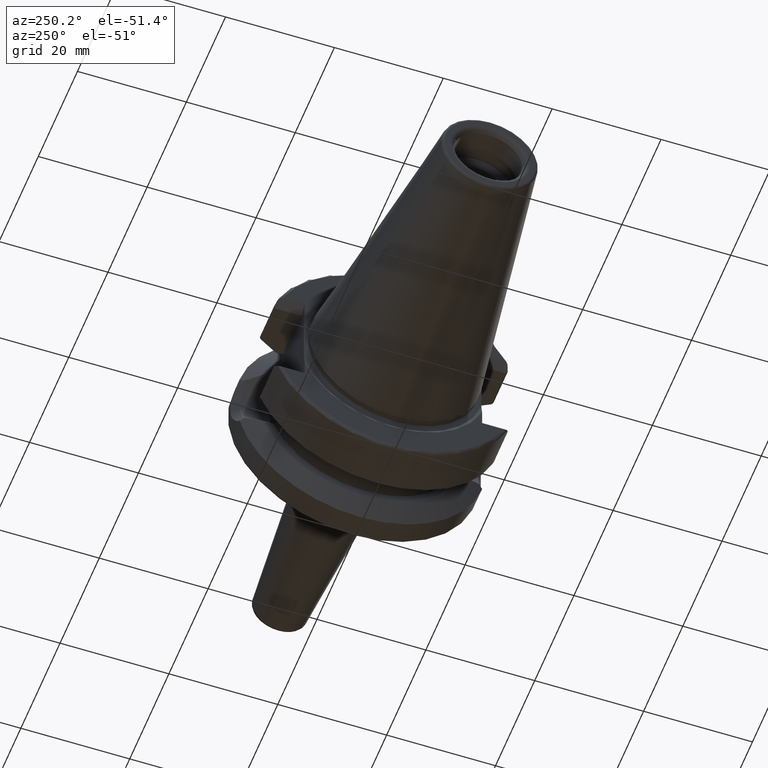
[diagram: clean part render]
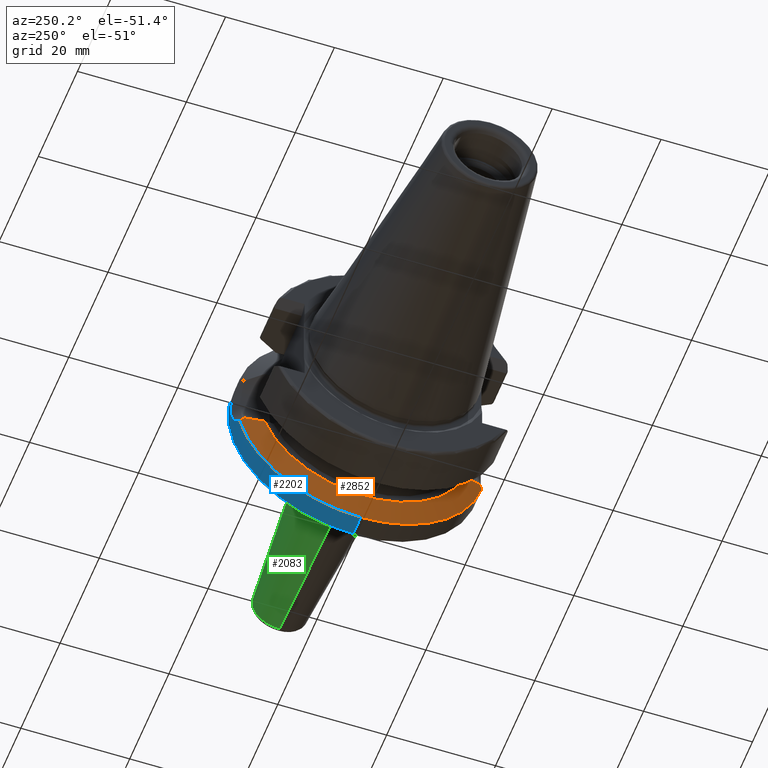
[diagram: same view with three faces highlighted in distinct colors, each labeled with its STEP entity id]
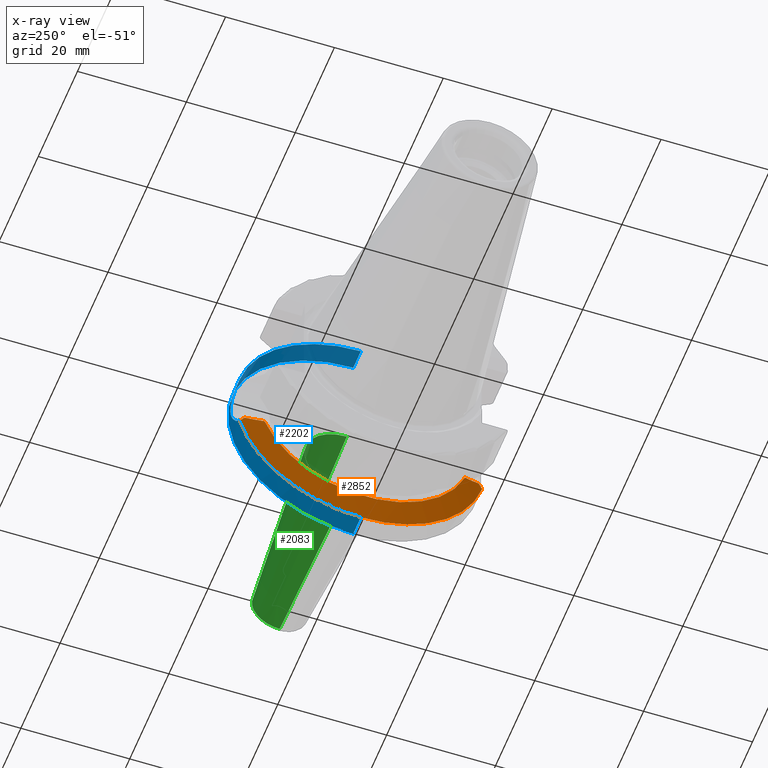
[diagram: x-ray of the same camera — body ghosted, the three highlighted faces saturated]
A machine part, auxiliary view with three faces highlighted in distinct colors.
The next image is the same camera in x-ray (body ghosted, the three faces saturated) — at least one of them is partly hidden behind the body in this view.
Their STEP definitions:

[orange] entity #2852 — the highlighted conical surface has half-angle 60 deg.
#507=CARTESIAN_POINT('',(1.762994105E1,2.228128551530E1,-5.704762552948E0));
#509=CARTESIAN_POINT('',(1.762994105E1,0.E0,0.E0));
#510=DIRECTION('',(1.E0,0.E0,0.E0));
#511=DIRECTION('',(0.E0,0.E0,-1.E0));
#512=AXIS2_PLACEMENT_3D('',#509,#510,#511);
#1066=CARTESIAN_POINT('',(1.762994105E1,-2.228128551530E1,-5.704762552948E0));
#1067=CARTESIAN_POINT('',(1.754699849289E1,-2.215727235610E1,
-5.609925297833E0));
#1068=CARTESIAN_POINT('',(1.738286337014E1,-2.191155304542E1,
-5.421496881998E0));
#1069=CARTESIAN_POINT('',(1.722224917371E1,-2.167047465394E1,
-5.235499218720E0));
#1070=CARTESIAN_POINT('',(1.714282833087E1,-2.155110382615E1,
-5.143090244631E0));
#1072=CARTESIAN_POINT('',(1.714282833087E1,2.155110382615E1,-5.143090244631E0));
#1073=CARTESIAN_POINT('',(1.722224917380E1,2.167047465408E1,-5.235499218823E0));
#1074=CARTESIAN_POINT('',(1.738286337032E1,2.191155304569E1,-5.421496882204E0));
#1075=CARTESIAN_POINT('',(1.754699849298E1,2.215727235624E1,-5.609925297935E0));
#1076=CARTESIAN_POINT('',(1.762994105E1,2.228128551530E1,-5.704762552948E0));
#1078=CARTESIAN_POINT('',(1.56300584E1,1.840542620957E1,-6.549775062748E0));
#1079=CARTESIAN_POINT('',(1.581913287648E1,1.880110795072E1,-6.414674302280E0));
#1080=CARTESIAN_POINT('',(1.618381384635E1,1.956209727519E1,-6.129361345053E0));
#1081=CARTESIAN_POINT('',(1.668859300772E1,2.061090659692E1,-5.659406960010E0));
#1082=CARTESIAN_POINT('',(1.699639923344E1,2.124828182100E1,-5.319406470843E0));
#1083=CARTESIAN_POINT('',(1.714282833087E1,2.155110382615E1,-5.143090244631E0));
#1085=CARTESIAN_POINT('',(1.56300584E1,0.E0,0.E0));
#1086=DIRECTION('',(-1.E0,0.E0,0.E0));
#1087=DIRECTION('',(0.E0,9.421237945915E-1,-3.352652019886E-1));
#1088=AXIS2_PLACEMENT_3D('',#1085,#1086,#1087);
#1090=CARTESIAN_POINT('',(1.714282833087E1,-2.155110382615E1,
-5.143090244631E0));
#1091=CARTESIAN_POINT('',(1.699635862047E1,-2.124819783153E1,
-5.319455373186E0));
#1092=CARTESIAN_POINT('',(1.668849650638E1,-2.061070614702E1,
-5.659497792001E0));
#1093=CARTESIAN_POINT('',(1.618392889942E1,-1.956233649303E1,
-6.129257646051E0));
#1094=CARTESIAN_POINT('',(1.581918420463E1,-1.880121536666E1,
-6.414637626400E0));
#1095=CARTESIAN_POINT('',(1.56300584E1,-1.840542620957E1,-6.549775062748E0));
#1128=CARTESIAN_POINT('',(1.762994105E1,-2.228128551530E1,-5.704762552948E0));
#1151=CARTESIAN_POINT('',(1.762994105E1,0.E0,0.E0));
#1152=DIRECTION('',(1.E0,0.E0,0.E0));
#1153=DIRECTION('',(0.E0,-9.687515441436E-1,-2.480331544760E-1));
#1154=AXIS2_PLACEMENT_3D('',#1151,#1152,#1153);
#1202=CARTESIAN_POINT('',(1.762994105E1,0.E0,-2.3E1));
#1203=VERTEX_POINT('',#1202);
#1288=CARTESIAN_POINT('',(1.56300584E1,1.840542620957E1,-6.549775062748E0));
#1289=VERTEX_POINT('',#1288);
#1309=VERTEX_POINT('',#507);
#1315=VERTEX_POINT('',#1072);
#1342=CARTESIAN_POINT('',(1.56300584E1,-1.840542620957E1,-6.549775062748E0));
#1343=VERTEX_POINT('',#1342);
#1364=VERTEX_POINT('',#1128);
#1376=VERTEX_POINT('',#1070);
#2835=CARTESIAN_POINT('',(1.662999972500E1,0.E0,0.E0));
#2836=DIRECTION('',(1.E0,0.E0,0.E0));
#2837=DIRECTION('',(0.E0,0.E0,1.E0));
#2838=AXIS2_PLACEMENT_3D('',#2835,#2836,#2837);
#2839=CONICAL_SURFACE('',#2838,2.126805082051E1,6.E1);
#2841=ORIENTED_EDGE('',*,*,#2840,.F.);
#2843=ORIENTED_EDGE('',*,*,#2842,.T.);
#2844=ORIENTED_EDGE('',*,*,#2191,.T.);
#2845=ORIENTED_EDGE('',*,*,#2830,.F.);
#2846=ORIENTED_EDGE('',*,*,#2803,.F.);
#2848=ORIENTED_EDGE('',*,*,#2847,.T.);
#2849=ORIENTED_EDGE('',*,*,#2538,.F.);
#2850=EDGE_LOOP('',(#2841,#2843,#2844,#2845,#2846,#2848,#2849));
#2851=FACE_OUTER_BOUND('',#2850,.F.);
#2852=ADVANCED_FACE('',(#2851),#2839,.T.);
#513=CIRCLE('',#512,2.3E1);
#1071=B_SPLINE_CURVE_WITH_KNOTS('',3,(#1066,#1067,#1068,#1069,#1070),
.UNSPECIFIED.,.F.,.F.,(4,1,4),(0.E0,5.E-1,1.E0),.UNSPECIFIED.);
#1077=B_SPLINE_CURVE_WITH_KNOTS('',3,(#1072,#1073,#1074,#1075,#1076),
.UNSPECIFIED.,.F.,.F.,(4,1,4),(0.E0,5.E-1,1.E0),.UNSPECIFIED.);
#1084=B_SPLINE_CURVE_WITH_KNOTS('',3,(#1078,#1079,#1080,#1081,#1082,#1083),
.UNSPECIFIED.,.F.,.F.,(4,1,1,4),(0.E0,3.333333333333E-1,6.666666666667E-1,1.E0),
.UNSPECIFIED.);
#1089=CIRCLE('',#1088,1.953610164102E1);
#1096=B_SPLINE_CURVE_WITH_KNOTS('',3,(#1090,#1091,#1092,#1093,#1094,#1095),
.UNSPECIFIED.,.F.,.F.,(4,1,1,4),(0.E0,3.333333333333E-1,6.666666666667E-1,1.E0),
.UNSPECIFIED.);
#1155=CIRCLE('',#1154,2.3E1);
#2191=EDGE_CURVE('',#1203,#1309,#513,.T.);
#2538=EDGE_CURVE('',#1376,#1343,#1096,.T.);
#2803=EDGE_CURVE('',#1289,#1315,#1084,.T.);
#2830=EDGE_CURVE('',#1315,#1309,#1077,.T.);
#2840=EDGE_CURVE('',#1364,#1376,#1071,.T.);
#2842=EDGE_CURVE('',#1364,#1203,#1155,.T.);
#2847=EDGE_CURVE('',#1289,#1343,#1089,.T.);

[blue] entity #2202 — the highlighted cylindrical surface (partial cylindrical patch) has radius 23 mm, axis along (1, 0, 0).
#496=CARTESIAN_POINT('',(1.762994105E1,2.228128551530E1,5.704762552948E0));
#497=CARTESIAN_POINT('',(1.805519351527E1,2.237780817834E1,5.327770698529E0));
#498=CARTESIAN_POINT('',(1.879206957439E1,2.256002457107E1,4.536180438767E0));
#499=CARTESIAN_POINT('',(1.959773851873E1,2.277979172199E1,3.263367466477E0));
#500=CARTESIAN_POINT('',(2.011061960240E1,2.292839881972E1,1.964537948342E0));
#501=CARTESIAN_POINT('',(2.036023249364E1,2.300304739081E1,6.568732270187E-1));
#502=CARTESIAN_POINT('',(2.036068401472E1,2.300318367082E1,-6.530269751443E-1));
#503=CARTESIAN_POINT('',(2.011125458857E1,2.292858499408E1,-1.962876371549E0));
#504=CARTESIAN_POINT('',(1.959777174065E1,2.277979615270E1,-3.263519538192E0));
#505=CARTESIAN_POINT('',(1.879138080982E1,2.255984277784E1,-4.537079307567E0));
#506=CARTESIAN_POINT('',(1.805479325206E1,2.237771732767E1,-5.328125537087E0));
#507=CARTESIAN_POINT('',(1.762994105E1,2.228128551530E1,-5.704762552948E0));
#509=CARTESIAN_POINT('',(1.762994105E1,0.E0,0.E0));
#510=DIRECTION('',(1.E0,0.E0,0.E0));
#511=DIRECTION('',(0.E0,0.E0,-1.E0));
#512=AXIS2_PLACEMENT_3D('',#509,#510,#511);
#514=DIRECTION('',(1.E0,-2.593767996762E-12,0.E0));
#515=VECTOR('',#514,3.87005895E0);
#516=CARTESIAN_POINT('',(1.762994105E1,0.E0,-2.3E1));
#517=LINE('',#516,#515);
#518=CARTESIAN_POINT('',(2.15E1,0.E0,0.E0));
#519=DIRECTION('',(1.E0,0.E0,0.E0));
#520=DIRECTION('',(0.E0,0.E0,-1.E0));
#521=AXIS2_PLACEMENT_3D('',#518,#519,#520);
#523=DIRECTION('',(1.E0,2.594050047129E-12,0.E0));
#524=VECTOR('',#523,3.87005895E0);
#525=CARTESIAN_POINT('',(1.762994105E1,0.E0,2.3E1));
#526=LINE('',#525,#524);
#527=CARTESIAN_POINT('',(1.762994105E1,0.E0,0.E0));
#528=DIRECTION('',(1.E0,0.E0,0.E0));
#529=DIRECTION('',(0.E0,9.687515441436E-1,2.480331544760E-1));
#530=AXIS2_PLACEMENT_3D('',#527,#528,#529);
#1196=CARTESIAN_POINT('',(2.15E1,0.E0,2.3E1));
#1197=CARTESIAN_POINT('',(2.15E1,0.E0,-2.3E1));
#1198=VERTEX_POINT('',#1196);
#1199=VERTEX_POINT('',#1197);
#1200=CARTESIAN_POINT('',(1.762994105E1,0.E0,2.3E1));
#1201=VERTEX_POINT('',#1200);
#1202=CARTESIAN_POINT('',(1.762994105E1,0.E0,-2.3E1));
#1203=VERTEX_POINT('',#1202);
#1308=VERTEX_POINT('',#496);
#1309=VERTEX_POINT('',#507);
#2184=CARTESIAN_POINT('',(0.E0,0.E0,0.E0));
#2185=DIRECTION('',(1.E0,0.E0,0.E0));
#2186=DIRECTION('',(0.E0,0.E0,1.E0));
#2187=AXIS2_PLACEMENT_3D('',#2184,#2185,#2186);
#2188=CYLINDRICAL_SURFACE('',#2187,2.3E1);
#2190=ORIENTED_EDGE('',*,*,#2189,.T.);
#2192=ORIENTED_EDGE('',*,*,#2191,.F.);
#2194=ORIENTED_EDGE('',*,*,#2193,.T.);
#2195=ORIENTED_EDGE('',*,*,#2138,.T.);
#2197=ORIENTED_EDGE('',*,*,#2196,.F.);
#2199=ORIENTED_EDGE('',*,*,#2198,.F.);
#2200=EDGE_LOOP('',(#2190,#2192,#2194,#2195,#2197,#2199));
#2201=FACE_OUTER_BOUND('',#2200,.F.);
#2202=ADVANCED_FACE('',(#2201),#2188,.T.);
#508=B_SPLINE_CURVE_WITH_KNOTS('',3,(#496,#497,#498,#499,#500,#501,#502,#503,
#504,#505,#506,#507),.UNSPECIFIED.,.F.,.F.,(4,1,1,1,1,1,1,1,1,4),(0.E0,
1.111111111111E-1,2.222222222222E-1,3.333333333333E-1,4.444444444444E-1,
5.555555555556E-1,6.666666666667E-1,7.777777777778E-1,8.888888888889E-1,1.E0),
.UNSPECIFIED.);
#513=CIRCLE('',#512,2.3E1);
#522=CIRCLE('',#521,2.3E1);
#531=CIRCLE('',#530,2.3E1);
#2138=EDGE_CURVE('',#1199,#1198,#522,.T.);
#2189=EDGE_CURVE('',#1308,#1309,#508,.T.);
#2191=EDGE_CURVE('',#1203,#1309,#513,.T.);
#2193=EDGE_CURVE('',#1203,#1199,#517,.T.);
#2196=EDGE_CURVE('',#1201,#1198,#526,.T.);
#2198=EDGE_CURVE('',#1308,#1201,#531,.T.);

[green] entity #2083 — the highlighted conical surface has half-angle 4.5 deg.
#407=DIRECTION('',(-9.969173337331E-1,0.E0,-7.845909572785E-2));
#408=VECTOR('',#407,3.441994157571E1);
#409=CARTESIAN_POINT('',(5.907845909573E1,0.E0,-5.072526842075E0));
#410=LINE('',#409,#408);
#411=DIRECTION('',(-9.969173337331E-1,0.E0,7.845909572785E-2));
#412=VECTOR('',#411,3.441994157571E1);
#413=CARTESIAN_POINT('',(5.907845909573E1,0.E0,5.072526842075E0));
#414=LINE('',#413,#412);
#420=CARTESIAN_POINT('',(5.907845909573E1,0.E0,0.E0));
#421=DIRECTION('',(1.E0,0.E0,0.E0));
#422=DIRECTION('',(0.E0,0.E0,-1.E0));
#423=AXIS2_PLACEMENT_3D('',#420,#421,#422);
#425=CARTESIAN_POINT('',(2.476462271282E1,0.E0,0.E0));
#426=DIRECTION('',(1.E0,0.E0,0.E0));
#427=DIRECTION('',(0.E0,0.E0,-1.E0));
#428=AXIS2_PLACEMENT_3D('',#425,#426,#427);
#1407=CARTESIAN_POINT('',(5.907845909573E1,0.E0,-5.072526842075E0));
#1409=VERTEX_POINT('',#1407);
#1410=CARTESIAN_POINT('',(2.476462271282E1,0.E0,-7.773084333111E0));
#1411=VERTEX_POINT('',#1410);
#1421=CARTESIAN_POINT('',(5.907845909573E1,0.E0,5.072526842075E0));
#1423=VERTEX_POINT('',#1421);
#1424=CARTESIAN_POINT('',(2.476462271282E1,0.E0,7.773084333111E0));
#1425=VERTEX_POINT('',#1424);
#2071=CARTESIAN_POINT('',(4.192154090427E1,0.E0,0.E0));
#2072=DIRECTION('',(-1.E0,0.E0,0.E0));
#2073=DIRECTION('',(0.E0,0.E0,-1.E0));
#2074=AXIS2_PLACEMENT_3D('',#2071,#2072,#2073);
#2075=CONICAL_SURFACE('',#2074,6.422805587593E0,4.5E0);
#2076=ORIENTED_EDGE('',*,*,#2061,.F.);
#2077=ORIENTED_EDGE('',*,*,#2038,.T.);
#2078=ORIENTED_EDGE('',*,*,#2065,.T.);
#2080=ORIENTED_EDGE('',*,*,#2079,.F.);
#2081=EDGE_LOOP('',(#2076,#2077,#2078,#2080));
#2082=FACE_OUTER_BOUND('',#2081,.F.);
#2083=ADVANCED_FACE('',(#2082),#2075,.T.);
#424=CIRCLE('',#423,5.072526842075E0);
#429=CIRCLE('',#428,7.773084333111E0);
#2038=EDGE_CURVE('',#1409,#1423,#424,.T.);
#2061=EDGE_CURVE('',#1409,#1411,#410,.T.);
#2065=EDGE_CURVE('',#1423,#1425,#414,.T.);
#2079=EDGE_CURVE('',#1411,#1425,#429,.T.);